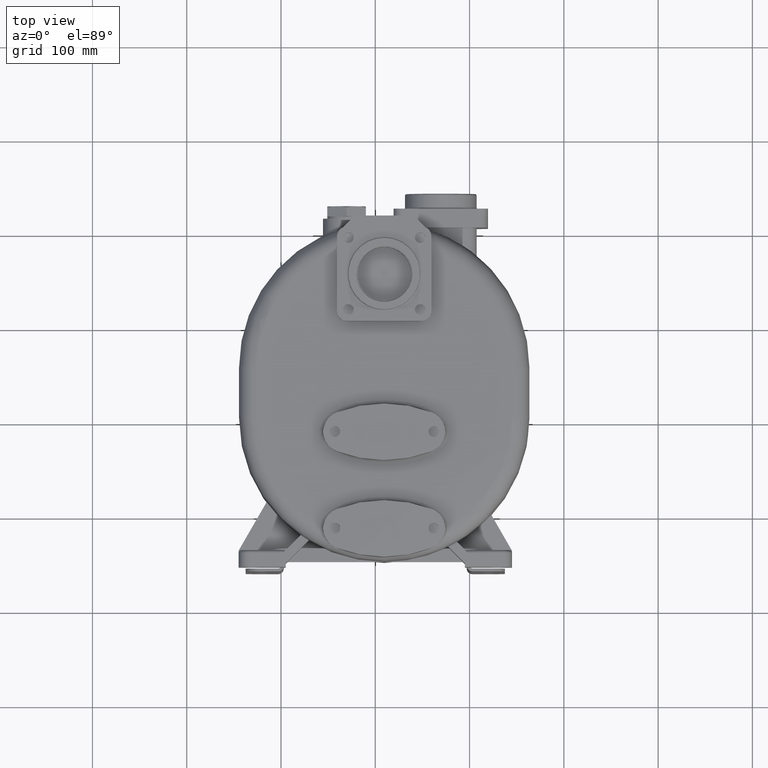
[diagram: clean part render]
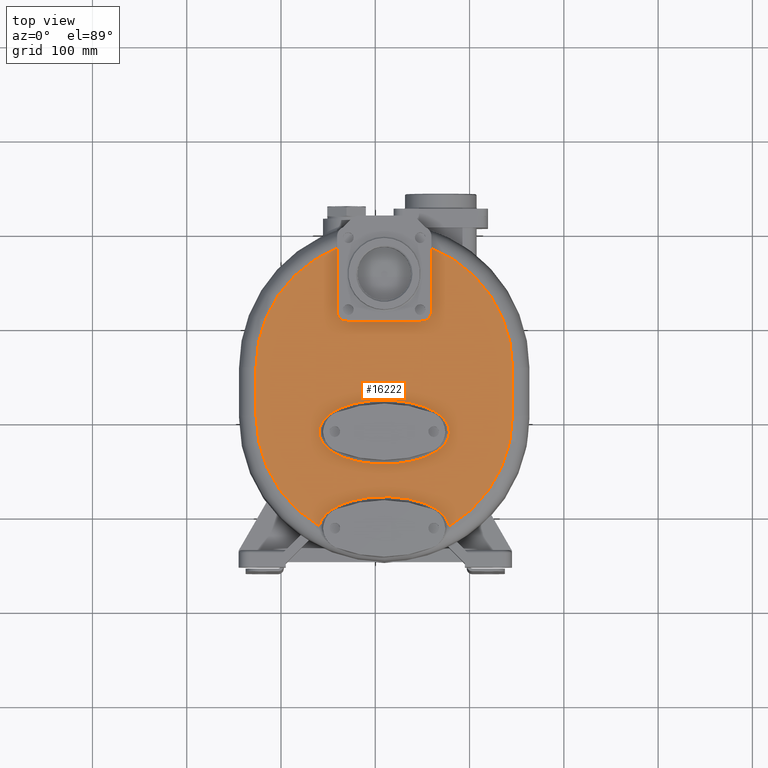
[diagram: same view with one face highlighted and labeled with its STEP entity id]
A machine part, top view. The second image highlights one B-rep face of the part: STEP entity #16222.
In plain terms, the highlighted planar face has unit normal (0, 0, -1).
Its self-contained STEP definition (entity closure, byte-faithful):
#1593=DIRECTION('',(0.E0,1.E0,0.E0));
#1594=VECTOR('',#1593,6.565424301820E1);
#1595=CARTESIAN_POINT('',(5.95E1,1.12E2,2.535E2));
#1596=LINE('',#1595,#1594);
#1602=CARTESIAN_POINT('',(4.75E1,1.12E2,2.535E2));
#1603=DIRECTION('',(0.E0,0.E0,1.E0));
#1604=DIRECTION('',(-1.184237892934E-14,-1.E0,0.E0));
#1605=AXIS2_PLACEMENT_3D('',#1602,#1603,#1604);
#1631=DIRECTION('',(1.E0,0.E0,0.E0));
#1632=VECTOR('',#1631,7.6E1);
#1633=CARTESIAN_POINT('',(-2.85E1,1.E2,2.535E2));
#1634=LINE('',#1633,#1632);
#1644=CARTESIAN_POINT('',(-2.85E1,1.12E2,2.535E2));
#1645=DIRECTION('',(0.E0,0.E0,1.E0));
#1646=DIRECTION('',(-1.E0,0.E0,0.E0));
#1647=AXIS2_PLACEMENT_3D('',#1644,#1645,#1646);
#1673=DIRECTION('',(0.E0,-1.E0,0.E0));
#1674=VECTOR('',#1673,6.565424301820E1);
#1675=CARTESIAN_POINT('',(-4.05E1,1.776542430182E2,2.535E2));
#1676=LINE('',#1675,#1674);
#1773=CARTESIAN_POINT('',(7.829761792100E1,-1.173153176956E2,2.535E2));
#1774=CARTESIAN_POINT('',(7.827001133720E1,-1.171322088930E2,2.534999685827E2));
#1775=CARTESIAN_POINT('',(7.820788121388E1,-1.167646895294E2,2.535000145808E2));
#1776=CARTESIAN_POINT('',(7.809844962269E1,-1.162086899597E2,2.534999960931E2));
#1777=CARTESIAN_POINT('',(7.796960011689E1,-1.156488451608E2,2.535000010469E2));
#1778=CARTESIAN_POINT('',(7.782146177802E1,-1.150853954415E2,2.534999997195E2));
#1779=CARTESIAN_POINT('',(7.765355959982E1,-1.145186130118E2,2.535000000752E2));
#1780=CARTESIAN_POINT('',(7.746560315051E1,-1.139488108744E2,2.534999999799E2));
#1781=CARTESIAN_POINT('',(7.725724319179E1,-1.133763259978E2,2.535000000054E2));
#1782=CARTESIAN_POINT('',(7.702819298947E1,-1.128016547511E2,2.534999999986E2));
#1783=CARTESIAN_POINT('',(7.677797316453E1,-1.122248693562E2,2.535000000004E2));
#1784=CARTESIAN_POINT('',(7.650577434111E1,-1.116455323902E2,2.534999999999E2));
#1785=CARTESIAN_POINT('',(7.621075199494E1,-1.110634556713E2,2.535E2));
#1786=CARTESIAN_POINT('',(7.589201696621E1,-1.104782238205E2,2.535E2));
#1787=CARTESIAN_POINT('',(7.554844156507E1,-1.098892137214E2,2.535E2));
#1788=CARTESIAN_POINT('',(7.517884479601E1,-1.092959565027E2,2.535E2));
#1789=CARTESIAN_POINT('',(7.478201688097E1,-1.086981514989E2,2.535E2));
#1790=CARTESIAN_POINT('',(7.435696759241E1,-1.080959716267E2,2.535E2));
#1791=CARTESIAN_POINT('',(7.390273736900E1,-1.074897129298E2,2.535E2));
#1792=CARTESIAN_POINT('',(7.341799098349E1,-1.068793025537E2,2.535E2));
#1793=CARTESIAN_POINT('',(7.290127035984E1,-1.062646004869E2,2.535E2));
#1794=CARTESIAN_POINT('',(7.235108022767E1,-1.056455254487E2,2.535E2));
#1795=CARTESIAN_POINT('',(7.176569347326E1,-1.050218024373E2,2.535E2));
#1796=CARTESIAN_POINT('',(7.114322379909E1,-1.043933460992E2,2.535E2));
#1797=CARTESIAN_POINT('',(7.048179830009E1,-1.037602328713E2,2.535E2));
#1798=CARTESIAN_POINT('',(6.977950721064E1,-1.031225159159E2,2.535E2));
#1799=CARTESIAN_POINT('',(6.903426698774E1,-1.024802452489E2,2.535E2));
#1800=CARTESIAN_POINT('',(6.824387652066E1,-1.018337159330E2,2.535E2));
#1801=CARTESIAN_POINT('',(6.740617797724E1,-1.011832262746E2,2.535E2));
#1802=CARTESIAN_POINT('',(6.651881847616E1,-1.005289898531E2,2.535E2));
#1803=CARTESIAN_POINT('',(6.557930263385E1,-9.987154126827E1,2.535E2));
#1804=CARTESIAN_POINT('',(6.458523859239E1,-9.921141500848E1,2.535E2));
#1805=CARTESIAN_POINT('',(6.353412544006E1,-9.854919481406E1,2.535E2));
#1806=CARTESIAN_POINT('',(6.242337060305E1,-9.788576695254E1,2.535E2));
#1807=CARTESIAN_POINT('',(6.125058535284E1,-9.722196977801E1,2.535E2));
#1808=CARTESIAN_POINT('',(6.001323355327E1,-9.655893069569E1,2.535E2));
#1809=CARTESIAN_POINT('',(5.870900572804E1,-9.589785175752E1,2.535E2));
#1810=CARTESIAN_POINT('',(5.733565116969E1,-9.524012802498E1,2.535E2));
#1811=CARTESIAN_POINT('',(5.589108315147E1,-9.458731136743E1,2.535E2));
#1812=CARTESIAN_POINT('',(5.437345926506E1,-9.394111477316E1,2.535E2));
#1813=CARTESIAN_POINT('',(5.278113051634E1,-9.330341429066E1,2.535E2));
#1814=CARTESIAN_POINT('',(5.111278831167E1,-9.267623958227E1,2.535E2));
#1815=CARTESIAN_POINT('',(4.936742083012E1,-9.206176470240E1,2.535E2));
#1816=CARTESIAN_POINT('',(4.754445409462E1,-9.146231400523E1,2.535E2));
#1817=CARTESIAN_POINT('',(4.564370187287E1,-9.088032264780E1,2.535E2));
#1818=CARTESIAN_POINT('',(4.366552829846E1,-9.031833939090E1,2.535E2));
#1819=CARTESIAN_POINT('',(4.161071517028E1,-8.977900397567E1,2.535E2));
#1820=CARTESIAN_POINT('',(3.948086362400E1,-8.926500597583E1,2.535E2));
#1821=CARTESIAN_POINT('',(3.727784556786E1,-8.877910620207E1,2.535E2));
#1822=CARTESIAN_POINT('',(3.500474593239E1,-8.832400998576E1,2.535E2));
#1823=CARTESIAN_POINT('',(3.266463818947E1,-8.790247531682E1,2.535E2));
#1824=CARTESIAN_POINT('',(3.026213998402E1,-8.751706417693E1,2.535E2));
#1825=CARTESIAN_POINT('',(2.780168448252E1,-8.717036231403E1,2.535E2));
#1826=CARTESIAN_POINT('',(2.528919373760E1,-8.686464199894E1,2.535E2));
#1827=CARTESIAN_POINT('',(2.273068397904E1,-8.660209195557E1,2.535E2));
#1828=CARTESIAN_POINT('',(2.013290709008E1,-8.638459072176E1,2.535E2));
#1829=CARTESIAN_POINT('',(1.750333834105E1,-8.621366564488E1,2.535E2));
#1830=CARTESIAN_POINT('',(1.484936366279E1,-8.609071467457E1,2.535E2));
#1831=CARTESIAN_POINT('',(1.217912947404E1,-8.601651723960E1,2.535E2));
#1832=CARTESIAN_POINT('',(9.500763443211E0,-8.599170687653E1,2.535E2));
#1833=CARTESIAN_POINT('',(6.822462426778E0,-8.601652196054E1,2.535E2));
#1834=CARTESIAN_POINT('',(4.152453743125E0,-8.609060923939E1,2.535E2));
#1835=CARTESIAN_POINT('',(1.499022919784E0,-8.621355409104E1,2.535E2));
#1836=CARTESIAN_POINT('',(-1.130009796276E0,-8.638438310433E1,2.535E2));
#1837=CARTESIAN_POINT('',(-3.727108570667E0,-8.660174037029E1,2.535E2));
#1838=CARTESIAN_POINT('',(-6.284687279590E0,-8.686416276766E1,2.535E2));
#1839=CARTESIAN_POINT('',(-8.796469099793E0,-8.716966441994E1,2.535E2));
#1840=CARTESIAN_POINT('',(-1.125607393882E1,-8.751615627886E1,2.535E2));
#1841=CARTESIAN_POINT('',(-1.365792917962E1,-8.790133875080E1,2.535E2));
#1842=CARTESIAN_POINT('',(-1.599755665647E1,-8.832264052843E1,2.535E2));
#1843=CARTESIAN_POINT('',(-1.827032903385E1,-8.877752953792E1,2.535E2));
#1844=CARTESIAN_POINT('',(-2.047323421311E1,-8.926324536476E1,2.535E2));
#1845=CARTESIAN_POINT('',(-2.260310860607E1,-8.977708637812E1,2.535E2));
#1846=CARTESIAN_POINT('',(-2.465805253038E1,-9.031630085144E1,2.535E2));
#1847=CARTESIAN_POINT('',(-2.663644880098E1,-9.087817829500E1,2.535E2));
#1848=CARTESIAN_POINT('',(-2.853743830780E1,-9.146009136967E1,2.535E2));
#1849=CARTESIAN_POINT('',(-3.036067908474E1,-9.205946551968E1,2.535E2));
#1850=CARTESIAN_POINT('',(-3.210629348962E1,-9.267388076138E1,2.535E2));
#1851=CARTESIAN_POINT('',(-3.377490843704E1,-9.330099441137E1,2.535E2));
#1852=CARTESIAN_POINT('',(-3.536748543789E1,-9.393865262741E1,2.535E2));
#1853=CARTESIAN_POINT('',(-3.688538783167E1,-9.458480662227E1,2.535E2));
#1854=CARTESIAN_POINT('',(-3.833021606073E1,-9.523760520807E1,2.535E2));
#1855=CARTESIAN_POINT('',(-3.970386444926E1,-9.589531105227E1,2.535E2));
#1856=CARTESIAN_POINT('',(-4.100836592566E1,-9.655640060629E1,2.535E2));
#1857=CARTESIAN_POINT('',(-4.224601951180E1,-9.721944839937E1,2.535E2));
#1858=CARTESIAN_POINT('',(-4.341908891934E1,-9.788328060302E1,2.535E2));
#1859=CARTESIAN_POINT('',(-4.453012713599E1,-9.854674327292E1,2.535E2));
#1860=CARTESIAN_POINT('',(-4.558152244355E1,-9.920900185035E1,2.535E2));
#1861=CARTESIAN_POINT('',(-4.657583400800E1,-9.986918670947E1,2.535E2));
#1862=CARTESIAN_POINT('',(-4.751560162049E1,-1.005266738043E2,2.535E2));
#1863=CARTESIAN_POINT('',(-4.840320008684E1,-1.011809657965E2,2.535E2));
#1864=CARTESIAN_POINT('',(-4.924110078969E1,-1.018315147107E2,2.535E2));
#1865=CARTESIAN_POINT('',(-5.003168490846E1,-1.024780731361E2,2.535E2));
#1866=CARTESIAN_POINT('',(-5.077711795260E1,-1.031203916782E2,2.535E2));
#1867=CARTESIAN_POINT('',(-5.147957765007E1,-1.037581726337E2,2.535E2));
#1868=CARTESIAN_POINT('',(-5.214118902656E1,-1.043913456712E2,2.535E2));
#1869=CARTESIAN_POINT('',(-5.276386898439E1,-1.050198978749E2,2.535E2));
#1870=CARTESIAN_POINT('',(-5.334942701530E1,-1.056437173165E2,2.535E2));
#1871=CARTESIAN_POINT('',(-5.389974994306E1,-1.062628573678E2,2.535E2));
#1872=CARTESIAN_POINT('',(-5.441654795369E1,-1.068775461636E2,2.535E2));
#1873=CARTESIAN_POINT('',(-5.490135635374E1,-1.074879207658E2,2.535E2));
#1874=CARTESIAN_POINT('',(-5.535562789346E1,-1.080941193529E2,2.535E2));
#1875=CARTESIAN_POINT('',(-5.578074758301E1,-1.086962955395E2,2.535E2));
#1876=CARTESIAN_POINT('',(-5.617767973243E1,-1.092941504874E2,2.535E2));
#1877=CARTESIAN_POINT('',(-5.654737232708E1,-1.098874493087E2,2.535E2));
#1878=CARTESIAN_POINT('',(-5.689101338795E1,-1.104764471953E2,2.535E2));
#1879=CARTESIAN_POINT('',(-5.720979213959E1,-1.110616194999E2,2.535E2));
#1880=CARTESIAN_POINT('',(-5.750484201970E1,-1.116435860561E2,
2.534999999999E2));
#1881=CARTESIAN_POINT('',(-5.777707249210E1,-1.122228303411E2,
2.535000000004E2));
#1882=CARTESIAN_POINT('',(-5.802733199407E1,-1.127995900019E2,
2.534999999985E2));
#1883=CARTESIAN_POINT('',(-5.825644958648E1,-1.133743133089E2,
2.535000000056E2));
#1884=CARTESIAN_POINT('',(-5.846492851703E1,-1.139469962902E2,
2.534999999792E2));
#1885=CARTESIAN_POINT('',(-5.865303192293E1,-1.145170880896E2,
2.535000000778E2));
#1886=CARTESIAN_POINT('',(-5.882109461114E1,-1.150842149659E2,
2.534999997096E2));
#1887=CARTESIAN_POINT('',(-5.896939984422E1,-1.156480214799E2,
2.535000010836E2));
#1888=CARTESIAN_POINT('',(-5.909839661563E1,-1.162081929463E2,
2.534999959559E2));
#1889=CARTESIAN_POINT('',(-5.920797165856E1,-1.167644806347E2,
2.535000150928E2));
#1890=CARTESIAN_POINT('',(-5.927000465394E1,-1.171321548051E2,
2.534999674795E2));
#1891=CARTESIAN_POINT('',(-5.929761836222E1,-1.173153192514E2,2.535E2));
#1893=CARTESIAN_POINT('',(9.5E0,0.E0,2.535E2));
#1894=DIRECTION('',(0.E0,0.E0,1.E0));
#1895=DIRECTION('',(-1.E0,0.E0,0.E0));
#1896=AXIS2_PLACEMENT_3D('',#1893,#1894,#1895);
#1898=DIRECTION('',(0.E0,-1.E0,0.E0));
#1899=VECTOR('',#1898,5.117894898810E1);
#1900=CARTESIAN_POINT('',(-1.265E2,5.117894898810E1,2.535E2));
#1901=LINE('',#1900,#1899);
#1902=CARTESIAN_POINT('',(9.5E0,5.117894898810E1,2.535E2));
#1903=DIRECTION('',(0.E0,0.E0,1.E0));
#1904=DIRECTION('',(-3.676470588235E-1,9.299653972801E-1,0.E0));
#1905=AXIS2_PLACEMENT_3D('',#1902,#1903,#1904);
#1907=CARTESIAN_POINT('',(9.5E0,5.117894898810E1,2.535E2));
#1908=DIRECTION('',(0.E0,0.E0,1.E0));
#1909=DIRECTION('',(1.E0,0.E0,0.E0));
#1910=AXIS2_PLACEMENT_3D('',#1907,#1908,#1909);
#1912=DIRECTION('',(0.E0,1.E0,0.E0));
#1913=VECTOR('',#1912,5.117894898810E1);
#1914=CARTESIAN_POINT('',(1.455E2,2.232246826167E-13,2.535E2));
#1915=LINE('',#1914,#1913);
#1916=CARTESIAN_POINT('',(9.5E0,0.E0,2.535E2));
#1917=DIRECTION('',(0.E0,0.E0,1.E0));
#1918=DIRECTION('',(5.058648923868E-1,-8.626127234458E-1,0.E0));
#1919=AXIS2_PLACEMENT_3D('',#1916,#1917,#1918);
#1921=CARTESIAN_POINT('',(-5.95E1,-1.75E1,2.535E2));
#1922=CARTESIAN_POINT('',(-5.949992643924E1,-1.768583549955E1,
2.535000369915E2));
#1923=CARTESIAN_POINT('',(-5.949370592854E1,-1.805752532977E1,
2.534999828322E2));
#1924=CARTESIAN_POINT('',(-5.946735966326E1,-1.861504573761E1,
2.535000046001E2));
#1925=CARTESIAN_POINT('',(-5.942358230477E1,-1.917276619847E1,
2.534999987674E2));
#1926=CARTESIAN_POINT('',(-5.936247118494E1,-1.973081188929E1,
2.535000003303E2));
#1927=CARTESIAN_POINT('',(-5.928386147082E1,-2.028930933935E1,
2.534999999115E2));
#1928=CARTESIAN_POINT('',(-5.918753681725E1,-2.084834602771E1,
2.535000000237E2));
#1929=CARTESIAN_POINT('',(-5.907316635480E1,-2.140798798768E1,
2.534999999936E2));
#1930=CARTESIAN_POINT('',(-5.894034032462E1,-2.196819193702E1,
2.535000000017E2));
#1931=CARTESIAN_POINT('',(-5.878887457450E1,-2.252935670132E1,
2.534999999995E2));
#1932=CARTESIAN_POINT('',(-5.861830066031E1,-2.309243522894E1,
2.535000000001E2));
#1933=CARTESIAN_POINT('',(-5.842804653398E1,-2.365816168509E1,2.535E2));
#1934=CARTESIAN_POINT('',(-5.821735200439E1,-2.422733665590E1,2.535E2));
#1935=CARTESIAN_POINT('',(-5.798561810959E1,-2.479992823021E1,2.535E2));
#1936=CARTESIAN_POINT('',(-5.773242405688E1,-2.537537495349E1,2.535E2));
#1937=CARTESIAN_POINT('',(-5.745731528331E1,-2.595309020398E1,2.535E2));
#1938=CARTESIAN_POINT('',(-5.715987287606E1,-2.653270186609E1,2.535E2));
#1939=CARTESIAN_POINT('',(-5.683886165442E1,-2.711544040065E1,2.535E2));
#1940=CARTESIAN_POINT('',(-5.649293233715E1,-2.770228474372E1,2.535E2));
#1941=CARTESIAN_POINT('',(-5.612066557723E1,-2.829399530855E1,2.535E2));
#1942=CARTESIAN_POINT('',(-5.572125904534E1,-2.889014942717E1,2.535E2));
#1943=CARTESIAN_POINT('',(-5.529400959907E1,-2.949019464904E1,2.535E2));
#1944=CARTESIAN_POINT('',(-5.483790798399E1,-3.009394975671E1,2.535E2));
#1945=CARTESIAN_POINT('',(-5.435112314566E1,-3.070217848574E1,2.535E2));
#1946=CARTESIAN_POINT('',(-5.383191738727E1,-3.131529717225E1,2.535E2));
#1947=CARTESIAN_POINT('',(-5.327882616243E1,-3.193328628442E1,2.535E2));
#1948=CARTESIAN_POINT('',(-5.269041057792E1,-3.255600541957E1,2.535E2));
#1949=CARTESIAN_POINT('',(-5.206473877883E1,-3.318353456754E1,2.535E2));
#1950=CARTESIAN_POINT('',(-5.139989985261E1,-3.381584833335E1,2.535E2));
#1951=CARTESIAN_POINT('',(-5.069415786181E1,-3.445275363085E1,2.535E2));
#1952=CARTESIAN_POINT('',(-4.994546334678E1,-3.509407839467E1,2.535E2));
#1953=CARTESIAN_POINT('',(-4.915141320153E1,-3.573973004827E1,2.535E2));
#1954=CARTESIAN_POINT('',(-4.830982173086E1,-3.638947355932E1,2.535E2));
#1955=CARTESIAN_POINT('',(-4.741840257734E1,-3.704292770529E1,2.535E2));
#1956=CARTESIAN_POINT('',(-4.647467058172E1,-3.769956116970E1,2.535E2));
#1957=CARTESIAN_POINT('',(-4.547641541511E1,-3.835878423251E1,2.535E2));
#1958=CARTESIAN_POINT('',(-4.442118841294E1,-3.901987859138E1,2.535E2));
#1959=CARTESIAN_POINT('',(-4.330640137875E1,-3.968204370664E1,2.535E2));
#1960=CARTESIAN_POINT('',(-4.212969709700E1,-4.034442249203E1,2.535E2));
#1961=CARTESIAN_POINT('',(-4.088860527040E1,-4.100582365324E1,2.535E2));
#1962=CARTESIAN_POINT('',(-3.958089271635E1,-4.166509794987E1,2.535E2));
#1963=CARTESIAN_POINT('',(-3.820432033009E1,-4.232078287350E1,2.535E2));
#1964=CARTESIAN_POINT('',(-3.675680567641E1,-4.297143028169E1,2.535E2));
#1965=CARTESIAN_POINT('',(-3.523651641802E1,-4.361526147837E1,2.535E2));
#1966=CARTESIAN_POINT('',(-3.364181525469E1,-4.425049359451E1,2.535E2));
#1967=CARTESIAN_POINT('',(-3.197145690446E1,-4.487501600819E1,2.535E2));
#1968=CARTESIAN_POINT('',(-3.022442284619E1,-4.548675593686E1,2.535E2));
#1969=CARTESIAN_POINT('',(-2.840024679119E1,-4.608329642122E1,2.535E2));
#1970=CARTESIAN_POINT('',(-2.649869018303E1,-4.666232747864E1,2.535E2));
#1971=CARTESIAN_POINT('',(-2.452028240887E1,-4.722118724761E1,2.535E2));
#1972=CARTESIAN_POINT('',(-2.246576471362E1,-4.775737410404E1,2.535E2));
#1973=CARTESIAN_POINT('',(-2.033685088408E1,-4.826809795829E1,2.535E2));
#1974=CARTESIAN_POINT('',(-1.813550692151E1,-4.875071557645E1,2.535E2));
#1975=CARTESIAN_POINT('',(-1.586469615730E1,-4.920248323968E1,2.535E2));
#1976=CARTESIAN_POINT('',(-1.352781606030E1,-4.962070447068E1,2.535E2));
#1977=CARTESIAN_POINT('',(-1.112903119538E1,-5.000287067926E1,2.535E2));
#1978=CARTESIAN_POINT('',(-8.673326547345E0,-5.034637154381E1,2.535E2));
#1979=CARTESIAN_POINT('',(-6.165966725194E0,-5.064908169266E1,2.535E2));
#1980=CARTESIAN_POINT('',(-3.613423671208E0,-5.090871737215E1,2.535E2));
#1981=CARTESIAN_POINT('',(-1.022078267083E0,-5.112357232876E1,2.535E2));
#1982=CARTESIAN_POINT('',(1.600657244835E0,-5.129202766620E1,2.535E2));
#1983=CARTESIAN_POINT('',(4.247204080420E0,-5.141277471987E1,2.535E2));
#1984=CARTESIAN_POINT('',(6.909772940035E0,-5.148506768444E1,2.535E2));
#1985=CARTESIAN_POINT('',(9.580142626739E0,-5.150820343658E1,2.535E2));
#1986=CARTESIAN_POINT('',(1.225011933597E1,-5.148207359023E1,2.535E2));
#1987=CARTESIAN_POINT('',(1.491156708201E1,-5.140696265736E1,2.535E2));
#1988=CARTESIAN_POINT('',(1.755643288215E1,-5.128327944888E1,2.535E2));
#1989=CARTESIAN_POINT('',(2.017665326749E1,-5.111210636485E1,2.535E2));
#1990=CARTESIAN_POINT('',(2.276492539068E1,-5.089467797809E1,2.535E2));
#1991=CARTESIAN_POINT('',(2.531398911138E1,-5.063248680121E1,2.535E2));
#1992=CARTESIAN_POINT('',(2.781704159325E1,-5.032759761940E1,2.535E2));
#1993=CARTESIAN_POINT('',(3.026838854981E1,-4.998192195080E1,2.535E2));
#1994=CARTESIAN_POINT('',(3.266217687239E1,-4.959789759596E1,2.535E2));
#1995=CARTESIAN_POINT('',(3.499391234053E1,-4.917799847627E1,2.535E2));
#1996=CARTESIAN_POINT('',(3.725937832605E1,-4.872471635698E1,2.535E2));
#1997=CARTESIAN_POINT('',(3.945506579444E1,-4.824090372847E1,2.535E2));
#1998=CARTESIAN_POINT('',(4.157839505343E1,-4.772907125506E1,2.535E2));
#1999=CARTESIAN_POINT('',(4.362702313056E1,-4.719213010478E1,2.535E2));
#2000=CARTESIAN_POINT('',(4.559971437785E1,-4.663259007120E1,2.535E2));
#2001=CARTESIAN_POINT('',(4.749536424136E1,-4.605321143900E1,2.535E2));
#2002=CARTESIAN_POINT('',(4.931381909586E1,-4.545640807746E1,2.535E2));
#2003=CARTESIAN_POINT('',(5.105508158293E1,-4.484469419952E1,2.535E2));
#2004=CARTESIAN_POINT('',(5.271987328294E1,-4.422028247192E1,2.535E2));
#2005=CARTESIAN_POINT('',(5.430908613387E1,-4.358539787051E1,2.535E2));
#2006=CARTESIAN_POINT('',(5.582412697310E1,-4.294197922253E1,2.535E2));
#2007=CARTESIAN_POINT('',(5.726655898213E1,-4.229193434101E1,2.535E2));
#2008=CARTESIAN_POINT('',(5.863827370486E1,-4.163690671919E1,2.535E2));
#2009=CARTESIAN_POINT('',(5.994128820411E1,-4.097847317094E1,2.535E2));
#2010=CARTESIAN_POINT('',(6.117783632529E1,-4.031798988044E1,2.535E2));
#2011=CARTESIAN_POINT('',(6.235021875997E1,-3.965666286736E1,2.535E2));
#2012=CARTESIAN_POINT('',(6.346085979041E1,-3.899563167269E1,2.535E2));
#2013=CARTESIAN_POINT('',(6.451211821843E1,-3.833575337047E1,2.535E2));
#2014=CARTESIAN_POINT('',(6.550655551542E1,-3.767792679538E1,2.535E2));
#2015=CARTESIAN_POINT('',(6.644654308100E1,-3.702277846083E1,2.535E2));
#2016=CARTESIAN_POINT('',(6.733457306955E1,-3.637079958387E1,2.535E2));
#2017=CARTESIAN_POINT('',(6.817311773434E1,-3.572251992743E1,2.535E2));
#2018=CARTESIAN_POINT('',(6.896439032716E1,-3.507824226808E1,2.535E2));
#2019=CARTESIAN_POINT('',(6.971075498020E1,-3.443811273835E1,2.535E2));
#2020=CARTESIAN_POINT('',(7.041440751229E1,-3.380239855332E1,2.535E2));
#2021=CARTESIAN_POINT('',(7.107726479795E1,-3.317126663816E1,2.535E2));
#2022=CARTESIAN_POINT('',(7.170134012533E1,-3.254469404647E1,2.535E2));
#2023=CARTESIAN_POINT('',(7.228852155619E1,-3.192274328589E1,2.535E2));
#2024=CARTESIAN_POINT('',(7.284045581007E1,-3.130546684974E1,2.535E2));
#2025=CARTESIAN_POINT('',(7.335883609343E1,-3.069272577594E1,2.535E2));
#2026=CARTESIAN_POINT('',(7.384522486547E1,-3.008445783421E1,2.535E2));
#2027=CARTESIAN_POINT('',(7.430099621383E1,-2.948063575742E1,2.535E2));
#2028=CARTESIAN_POINT('',(7.472754264112E1,-2.888106152244E1,2.535E2));
#2029=CARTESIAN_POINT('',(7.512612497110E1,-2.828559753318E1,2.535E2));
#2030=CARTESIAN_POINT('',(7.549788650179E1,-2.769414003431E1,2.535E2));
#2031=CARTESIAN_POINT('',(7.584395924231E1,-2.710643663862E1,2.535E2));
#2032=CARTESIAN_POINT('',(7.616531801877E1,-2.652233470148E1,2.535E2));
#2033=CARTESIAN_POINT('',(7.646288707471E1,-2.594169484958E1,2.535E2));
#2034=CARTESIAN_POINT('',(7.673754114141E1,-2.536426096668E1,2.535E2));
#2035=CARTESIAN_POINT('',(7.699006885885E1,-2.478979525003E1,2.535E2));
#2036=CARTESIAN_POINT('',(7.722124767839E1,-2.421799532067E1,2.535E2));
#2037=CARTESIAN_POINT('',(7.743169061506E1,-2.364862215097E1,2.535E2));
#2038=CARTESIAN_POINT('',(7.762191403805E1,-2.308165263114E1,2.535E2));
#2039=CARTESIAN_POINT('',(7.779243753280E1,-2.251704613851E1,2.535E2));
#2040=CARTESIAN_POINT('',(7.794373872304E1,-2.195448722023E1,2.535000000001E2));
#2041=CARTESIAN_POINT('',(7.807630448617E1,-2.139346690889E1,2.534999999997E2));
#2042=CARTESIAN_POINT('',(7.819059689679E1,-2.083342309320E1,2.535000000011E2));
#2043=CARTESIAN_POINT('',(7.828685028349E1,-2.027406772542E1,2.534999999958E2));
#2044=CARTESIAN_POINT('',(7.836514855153E1,-1.971580579823E1,2.535000000156E2));
#2045=CARTESIAN_POINT('',(7.842571945030E1,-1.915893430248E1,2.534999999417E2));
#2046=CARTESIAN_POINT('',(7.846873927869E1,-1.860376030285E1,2.535000002176E2));
#2047=CARTESIAN_POINT('',(7.849433000484E1,-1.805052068892E1,2.534999991879E2));
#2048=CARTESIAN_POINT('',(7.849999698055E1,-1.768326115585E1,2.535000017499E2));
#2049=CARTESIAN_POINT('',(7.85E1,-1.75E1,2.535E2));
#2051=CARTESIAN_POINT('',(7.85E1,-1.75E1,2.535E2));
#2052=CARTESIAN_POINT('',(7.849992643924E1,-1.731416450045E1,2.535000369915E2));
#2053=CARTESIAN_POINT('',(7.849370592854E1,-1.694247467023E1,2.534999828322E2));
#2054=CARTESIAN_POINT('',(7.846735966326E1,-1.638495426239E1,2.535000046001E2));
#2055=CARTESIAN_POINT('',(7.842358230477E1,-1.582723380153E1,2.534999987674E2));
#2056=CARTESIAN_POINT('',(7.836247118494E1,-1.526918811071E1,2.535000003303E2));
#2057=CARTESIAN_POINT('',(7.828386147082E1,-1.471069066065E1,2.534999999115E2));
#2058=CARTESIAN_POINT('',(7.818753681725E1,-1.415165397229E1,2.535000000237E2));
#2059=CARTESIAN_POINT('',(7.807316635480E1,-1.359201201232E1,2.534999999936E2));
#2060=CARTESIAN_POINT('',(7.794034032462E1,-1.303180806298E1,2.535000000017E2));
#2061=CARTESIAN_POINT('',(7.778887457450E1,-1.247064329868E1,2.534999999995E2));
#2062=CARTESIAN_POINT('',(7.761830066032E1,-1.190756477106E1,2.535000000001E2));
#2063=CARTESIAN_POINT('',(7.742804653398E1,-1.134183831491E1,2.535E2));
#2064=CARTESIAN_POINT('',(7.721735200439E1,-1.077266334410E1,2.535E2));
#2065=CARTESIAN_POINT('',(7.698561810959E1,-1.020007176979E1,2.535E2));
#2066=CARTESIAN_POINT('',(7.673242405688E1,-9.624625046507E0,2.535E2));
#2067=CARTESIAN_POINT('',(7.645731528331E1,-9.046909796024E0,2.535E2));
#2068=CARTESIAN_POINT('',(7.615987287606E1,-8.467298133913E0,2.535E2));
#2069=CARTESIAN_POINT('',(7.583886165442E1,-7.884559599355E0,2.535E2));
#2070=CARTESIAN_POINT('',(7.549293233715E1,-7.297715256285E0,2.535E2));
#2071=CARTESIAN_POINT('',(7.512066557723E1,-6.706004691454E0,2.535E2));
#2072=CARTESIAN_POINT('',(7.472125904534E1,-6.109850572827E0,2.535E2));
#2073=CARTESIAN_POINT('',(7.429400959907E1,-5.509805350963E0,2.535E2));
#2074=CARTESIAN_POINT('',(7.383790798399E1,-4.906050243289E0,2.535E2));
#2075=CARTESIAN_POINT('',(7.335112314566E1,-4.297821514257E0,2.535E2));
#2076=CARTESIAN_POINT('',(7.283191738727E1,-3.684702827749E0,2.535E2));
#2077=CARTESIAN_POINT('',(7.227882616243E1,-3.066713715584E0,2.535E2));
#2078=CARTESIAN_POINT('',(7.169041057792E1,-2.443994580426E0,2.535E2));
#2079=CARTESIAN_POINT('',(7.106473877882E1,-1.816465432459E0,2.535E2));
#2080=CARTESIAN_POINT('',(7.039989985261E1,-1.184151666648E0,2.535E2));
#2081=CARTESIAN_POINT('',(6.969415786181E1,-5.472463691543E-1,2.535E2));
#2082=CARTESIAN_POINT('',(6.894546334678E1,9.407839467514E-2,2.535E2));
#2083=CARTESIAN_POINT('',(6.815141320153E1,7.397300482663E-1,2.535E2));
#2084=CARTESIAN_POINT('',(6.730982173086E1,1.389473559321E0,2.535E2));
#2085=CARTESIAN_POINT('',(6.641840257734E1,2.042927705294E0,2.535E2));
#2086=CARTESIAN_POINT('',(6.547467058172E1,2.699561169703E0,2.535E2));
#2087=CARTESIAN_POINT('',(6.447641541511E1,3.358784232507E0,2.535E2));
#2088=CARTESIAN_POINT('',(6.342118841294E1,4.019878591384E0,2.535E2));
#2089=CARTESIAN_POINT('',(6.230640137875E1,4.682043706643E0,2.535E2));
#2090=CARTESIAN_POINT('',(6.112969709700E1,5.344422492029E0,2.535E2));
#2091=CARTESIAN_POINT('',(5.988860527040E1,6.005823653238E0,2.535E2));
#2092=CARTESIAN_POINT('',(5.858089271635E1,6.665097949871E0,2.535E2));
#2093=CARTESIAN_POINT('',(5.720432033009E1,7.320782873501E0,2.535E2));
#2094=CARTESIAN_POINT('',(5.575680567641E1,7.971430281687E0,2.535E2));
#2095=CARTESIAN_POINT('',(5.423651641802E1,8.615261478369E0,2.535E2));
#2096=CARTESIAN_POINT('',(5.264181525469E1,9.250493594511E0,2.535E2));
#2097=CARTESIAN_POINT('',(5.097145690446E1,9.875016008192E0,2.535E2));
#2098=CARTESIAN_POINT('',(4.922442284618E1,1.048675593686E1,2.535E2));
#2099=CARTESIAN_POINT('',(4.740024679119E1,1.108329642122E1,2.535E2));
#2100=CARTESIAN_POINT('',(4.549869018303E1,1.166232747864E1,2.535E2));
#2101=CARTESIAN_POINT('',(4.352028240887E1,1.222118724761E1,2.535E2));
#2102=CARTESIAN_POINT('',(4.146576471362E1,1.275737410404E1,2.535E2));
#2103=CARTESIAN_POINT('',(3.933685088408E1,1.326809795829E1,2.535E2));
#2104=CARTESIAN_POINT('',(3.713550692151E1,1.375071557645E1,2.535E2));
#2105=CARTESIAN_POINT('',(3.486469615730E1,1.420248323968E1,2.535E2));
#2106=CARTESIAN_POINT('',(3.252781606030E1,1.462070447068E1,2.535E2));
#2107=CARTESIAN_POINT('',(3.012903119538E1,1.500287067926E1,2.535E2));
#2108=CARTESIAN_POINT('',(2.767332654735E1,1.534637154381E1,2.535E2));
#2109=CARTESIAN_POINT('',(2.516596672520E1,1.564908169266E1,2.535E2));
#2110=CARTESIAN_POINT('',(2.261342367121E1,1.590871737215E1,2.535E2));
#2111=CARTESIAN_POINT('',(2.002207826708E1,1.612357232876E1,2.535E2));
#2112=CARTESIAN_POINT('',(1.739934275517E1,1.629202766620E1,2.535E2));
#2113=CARTESIAN_POINT('',(1.475279591958E1,1.641277471987E1,2.535E2));
#2114=CARTESIAN_POINT('',(1.209022705997E1,1.648506768444E1,2.535E2));
#2115=CARTESIAN_POINT('',(9.419857373263E0,1.650820343658E1,2.535E2));
#2116=CARTESIAN_POINT('',(6.749880664033E0,1.648207359023E1,2.535E2));
#2117=CARTESIAN_POINT('',(4.088432917994E0,1.640696265736E1,2.535E2));
#2118=CARTESIAN_POINT('',(1.443567117849E0,1.628327944888E1,2.535E2));
#2119=CARTESIAN_POINT('',(-1.176653267484E0,1.611210636485E1,2.535E2));
#2120=CARTESIAN_POINT('',(-3.764925390675E0,1.589467797809E1,2.535E2));
#2121=CARTESIAN_POINT('',(-6.313989111378E0,1.563248680121E1,2.535E2));
#2122=CARTESIAN_POINT('',(-8.817041593251E0,1.532759761940E1,2.535E2));
#2123=CARTESIAN_POINT('',(-1.126838854981E1,1.498192195080E1,2.535E2));
#2124=CARTESIAN_POINT('',(-1.366217687239E1,1.459789759596E1,2.535E2));
#2125=CARTESIAN_POINT('',(-1.599391234053E1,1.417799847627E1,2.535E2));
#2126=CARTESIAN_POINT('',(-1.825937832605E1,1.372471635698E1,2.535E2));
#2127=CARTESIAN_POINT('',(-2.045506579444E1,1.324090372847E1,2.535E2));
#2128=CARTESIAN_POINT('',(-2.257839505343E1,1.272907125506E1,2.535E2));
#2129=CARTESIAN_POINT('',(-2.462702313056E1,1.219213010478E1,2.535E2));
#2130=CARTESIAN_POINT('',(-2.659971437785E1,1.163259007120E1,2.535E2));
#2131=CARTESIAN_POINT('',(-2.849536424136E1,1.105321143901E1,2.535E2));
#2132=CARTESIAN_POINT('',(-3.031381909586E1,1.045640807746E1,2.535E2));
#2133=CARTESIAN_POINT('',(-3.205508158293E1,9.844694199525E0,2.535E2));
#2134=CARTESIAN_POINT('',(-3.371987328294E1,9.220282471916E0,2.535E2));
#2135=CARTESIAN_POINT('',(-3.530908613387E1,8.585397870514E0,2.535E2));
#2136=CARTESIAN_POINT('',(-3.682412697310E1,7.941979222526E0,2.535E2));
#2137=CARTESIAN_POINT('',(-3.826655898212E1,7.291934341011E0,2.535E2));
#2138=CARTESIAN_POINT('',(-3.963827370486E1,6.636906719193E0,2.535E2));
#2139=CARTESIAN_POINT('',(-4.094128820411E1,5.978473170941E0,2.535E2));
#2140=CARTESIAN_POINT('',(-4.217783632529E1,5.317989880442E0,2.535E2));
#2141=CARTESIAN_POINT('',(-4.335021875996E1,4.656662867359E0,2.535E2));
#2142=CARTESIAN_POINT('',(-4.446085979041E1,3.995631672686E0,2.535E2));
#2143=CARTESIAN_POINT('',(-4.551211821842E1,3.335753370470E0,2.535E2));
#2144=CARTESIAN_POINT('',(-4.650655551542E1,2.677926795378E0,2.535E2));
#2145=CARTESIAN_POINT('',(-4.744654308100E1,2.022778460831E0,2.535E2));
#2146=CARTESIAN_POINT('',(-4.833457306955E1,1.370799583867E0,2.535E2));
#2147=CARTESIAN_POINT('',(-4.917311773434E1,7.225199274334E-1,2.535E2));
#2148=CARTESIAN_POINT('',(-4.996439032716E1,7.824226807792E-2,2.535E2));
#2149=CARTESIAN_POINT('',(-5.071075498020E1,-5.618872616519E-1,2.535E2));
#2150=CARTESIAN_POINT('',(-5.141440751229E1,-1.197601446678E0,2.535E2));
#2151=CARTESIAN_POINT('',(-5.207726479795E1,-1.828733361841E0,2.535E2));
#2152=CARTESIAN_POINT('',(-5.270134012533E1,-2.455305953529E0,2.535E2));
#2153=CARTESIAN_POINT('',(-5.328852155619E1,-3.077256714111E0,2.535E2));
#2154=CARTESIAN_POINT('',(-5.384045581007E1,-3.694533150263E0,2.535E2));
#2155=CARTESIAN_POINT('',(-5.435883609343E1,-4.307274224058E0,2.535E2));
#2156=CARTESIAN_POINT('',(-5.484522486547E1,-4.915542165791E0,2.535E2));
#2157=CARTESIAN_POINT('',(-5.530099621383E1,-5.519364242575E0,2.535E2));
#2158=CARTESIAN_POINT('',(-5.572754264112E1,-6.118938477554E0,2.535E2));
#2159=CARTESIAN_POINT('',(-5.612612497110E1,-6.714402466816E0,2.535E2));
#2160=CARTESIAN_POINT('',(-5.649788650179E1,-7.305859965693E0,2.535E2));
#2161=CARTESIAN_POINT('',(-5.684395924231E1,-7.893563361379E0,2.535E2));
#2162=CARTESIAN_POINT('',(-5.716531801877E1,-8.477665298523E0,2.535E2));
#2163=CARTESIAN_POINT('',(-5.746288707471E1,-9.058305150423E0,2.535E2));
#2164=CARTESIAN_POINT('',(-5.773754114140E1,-9.635739033319E0,2.535E2));
#2165=CARTESIAN_POINT('',(-5.799006885885E1,-1.021020474997E1,2.535E2));
#2166=CARTESIAN_POINT('',(-5.822124767839E1,-1.078200467932E1,2.535E2));
#2167=CARTESIAN_POINT('',(-5.843169061506E1,-1.135137784903E1,2.535E2));
#2168=CARTESIAN_POINT('',(-5.862191403805E1,-1.191834736886E1,2.535E2));
#2169=CARTESIAN_POINT('',(-5.879243753280E1,-1.248295386149E1,2.535E2));
#2170=CARTESIAN_POINT('',(-5.894373872304E1,-1.304551277977E1,
2.535000000001E2));
#2171=CARTESIAN_POINT('',(-5.907630448617E1,-1.360653309111E1,
2.534999999997E2));
#2172=CARTESIAN_POINT('',(-5.919059689679E1,-1.416657690680E1,
2.535000000011E2));
#2173=CARTESIAN_POINT('',(-5.928685028349E1,-1.472593227458E1,
2.534999999958E2));
#2174=CARTESIAN_POINT('',(-5.936514855153E1,-1.528419420177E1,
2.535000000156E2));
#2175=CARTESIAN_POINT('',(-5.942571945030E1,-1.584106569752E1,
2.534999999417E2));
#2176=CARTESIAN_POINT('',(-5.946873927869E1,-1.639623969715E1,
2.535000002176E2));
#2177=CARTESIAN_POINT('',(-5.949433000484E1,-1.694947931108E1,
2.534999991879E2));
#2178=CARTESIAN_POINT('',(-5.949999698055E1,-1.731673884415E1,
2.535000017499E2));
#2179=CARTESIAN_POINT('',(-5.95E1,-1.75E1,2.535E2));
#2258=CARTESIAN_POINT('',(-5.929762195240E1,-1.173153323897E2,2.535E2));
#2401=CARTESIAN_POINT('',(7.829762195240E1,-1.173153323897E2,2.535E2));
#13570=CARTESIAN_POINT('',(-2.85E1,1.E2,2.535E2));
#13571=CARTESIAN_POINT('',(4.75E1,1.E2,2.535E2));
#13572=VERTEX_POINT('',#13570);
#13573=VERTEX_POINT('',#13571);
#13578=CARTESIAN_POINT('',(1.455E2,5.117894898810E1,2.535E2));
#13579=CARTESIAN_POINT('',(5.95E1,1.776542430182E2,2.535E2));
#13580=VERTEX_POINT('',#13578);
#13581=VERTEX_POINT('',#13579);
#13582=CARTESIAN_POINT('',(1.455E2,2.232246826167E-13,2.535E2));
#13583=VERTEX_POINT('',#13582);
#13588=CARTESIAN_POINT('',(-1.265E2,5.117894898810E1,2.535E2));
#13589=CARTESIAN_POINT('',(-1.265E2,0.E0,2.535E2));
#13590=VERTEX_POINT('',#13588);
#13591=VERTEX_POINT('',#13589);
#13594=CARTESIAN_POINT('',(-4.05E1,1.776542430182E2,2.535E2));
#13595=VERTEX_POINT('',#13594);
#13598=CARTESIAN_POINT('',(-4.05E1,1.12E2,2.535E2));
#13599=VERTEX_POINT('',#13598);
#13600=CARTESIAN_POINT('',(5.95E1,1.12E2,2.535E2));
#13601=VERTEX_POINT('',#13600);
#13750=VERTEX_POINT('',#1921);
#13751=VERTEX_POINT('',#2049);
#13758=VERTEX_POINT('',#2258);
#13764=VERTEX_POINT('',#2401);
#16191=CARTESIAN_POINT('',(0.E0,0.E0,2.535E2));
#16192=DIRECTION('',(0.E0,0.E0,-1.E0));
#16193=DIRECTION('',(-1.E0,0.E0,0.E0));
#16194=AXIS2_PLACEMENT_3D('',#16191,#16192,#16193);
#16195=PLANE('',#16194);
#16197=ORIENTED_EDGE('',*,*,#16196,.T.);
#16199=ORIENTED_EDGE('',*,*,#16198,.F.);
#16201=ORIENTED_EDGE('',*,*,#16200,.F.);
#16202=ORIENTED_EDGE('',*,*,#16181,.F.);
#16203=ORIENTED_EDGE('',*,*,#16149,.T.);
#16204=ORIENTED_EDGE('',*,*,#16111,.T.);
#16205=ORIENTED_EDGE('',*,*,#16098,.T.);
#16206=ORIENTED_EDGE('',*,*,#16060,.T.);
#16207=ORIENTED_EDGE('',*,*,#16047,.T.);
#16209=ORIENTED_EDGE('',*,*,#16208,.F.);
#16211=ORIENTED_EDGE('',*,*,#16210,.F.);
#16213=ORIENTED_EDGE('',*,*,#16212,.F.);
#16214=EDGE_LOOP('',(#16197,#16199,#16201,#16202,#16203,#16204,#16205,#16206,
#16207,#16209,#16211,#16213));
#16215=FACE_OUTER_BOUND('',#16214,.F.);
#16217=ORIENTED_EDGE('',*,*,#16216,.T.);
#16219=ORIENTED_EDGE('',*,*,#16218,.T.);
#16220=EDGE_LOOP('',(#16217,#16219));
#16221=FACE_BOUND('',#16220,.F.);
#16222=ADVANCED_FACE('',(#16215,#16221),#16195,.F.);
#1606=CIRCLE('',#1605,1.2E1);
#1648=CIRCLE('',#1647,1.2E1);
#1892=B_SPLINE_CURVE_WITH_KNOTS('',3,(#1773,#1774,#1775,#1776,#1777,#1778,#1779,
#1780,#1781,#1782,#1783,#1784,#1785,#1786,#1787,#1788,#1789,#1790,#1791,#1792,
#1793,#1794,#1795,#1796,#1797,#1798,#1799,#1800,#1801,#1802,#1803,#1804,#1805,
#1806,#1807,#1808,#1809,#1810,#1811,#1812,#1813,#1814,#1815,#1816,#1817,#1818,
#1819,#1820,#1821,#1822,#1823,#1824,#1825,#1826,#1827,#1828,#1829,#1830,#1831,
#1832,#1833,#1834,#1835,#1836,#1837,#1838,#1839,#1840,#1841,#1842,#1843,#1844,
#1845,#1846,#1847,#1848,#1849,#1850,#1851,#1852,#1853,#1854,#1855,#1856,#1857,
#1858,#1859,#1860,#1861,#1862,#1863,#1864,#1865,#1866,#1867,#1868,#1869,#1870,
#1871,#1872,#1873,#1874,#1875,#1876,#1877,#1878,#1879,#1880,#1881,#1882,#1883,
#1884,#1885,#1886,#1887,#1888,#1889,#1890,#1891),.UNSPECIFIED.,.F.,.F.,(4,1,1,1,
1,1,1,1,1,1,1,1,1,1,1,1,1,1,1,1,1,1,1,1,1,1,1,1,1,1,1,1,1,1,1,1,1,1,1,1,1,1,1,1,
1,1,1,1,1,1,1,1,1,1,1,1,1,1,1,1,1,1,1,1,1,1,1,1,1,1,1,1,1,1,1,1,1,1,1,1,1,1,1,1,
1,1,1,1,1,1,1,1,1,1,1,1,1,1,1,1,1,1,1,1,1,1,1,1,1,1,1,1,1,1,1,1,4),(0.E0,
8.620689655172E-3,1.724137931034E-2,2.586206896552E-2,3.448275862069E-2,
4.310344827586E-2,5.172413793103E-2,6.034482758621E-2,6.896551724138E-2,
7.758620689655E-2,8.620689655172E-2,9.482758620690E-2,1.034482758621E-1,
1.120689655172E-1,1.206896551724E-1,1.293103448276E-1,1.379310344828E-1,
1.465517241379E-1,1.551724137931E-1,1.637931034483E-1,1.724137931034E-1,
1.810344827586E-1,1.896551724138E-1,1.982758620690E-1,2.068965517241E-1,
2.155172413793E-1,2.241379310345E-1,2.327586206897E-1,2.413793103448E-1,2.5E-1,
2.586206896552E-1,2.672413793103E-1,2.758620689655E-1,2.844827586207E-1,
2.931034482759E-1,3.017241379310E-1,3.103448275862E-1,3.189655172414E-1,
3.275862068966E-1,3.362068965517E-1,3.448275862069E-1,3.534482758621E-1,
3.620689655172E-1,3.706896551724E-1,3.793103448276E-1,3.879310344828E-1,
3.965517241379E-1,4.051724137931E-1,4.137931034483E-1,4.224137931034E-1,
4.310344827586E-1,4.396551724138E-1,4.482758620690E-1,4.568965517241E-1,
4.655172413793E-1,4.741379310345E-1,4.827586206897E-1,4.913793103448E-1,5.E-1,
5.086206896552E-1,5.172413793103E-1,5.258620689655E-1,5.344827586207E-1,
5.431034482759E-1,5.517241379310E-1,5.603448275862E-1,5.689655172414E-1,
5.775862068966E-1,5.862068965517E-1,5.948275862069E-1,6.034482758621E-1,
6.120689655172E-1,6.206896551724E-1,6.293103448276E-1,6.379310344828E-1,
6.465517241379E-1,6.551724137931E-1,6.637931034483E-1,6.724137931034E-1,
6.810344827586E-1,6.896551724138E-1,6.982758620690E-1,7.068965517241E-1,
7.155172413793E-1,7.241379310345E-1,7.327586206897E-1,7.413793103448E-1,7.5E-1,
7.586206896552E-1,7.672413793103E-1,7.758620689655E-1,7.844827586207E-1,
7.931034482759E-1,8.017241379310E-1,8.103448275862E-1,8.189655172414E-1,
8.275862068966E-1,8.362068965517E-1,8.448275862069E-1,8.534482758621E-1,
8.620689655172E-1,8.706896551724E-1,8.793103448276E-1,8.879310344828E-1,
8.965517241379E-1,9.051724137931E-1,9.137931034483E-1,9.224137931034E-1,
9.310344827586E-1,9.396551724138E-1,9.482758620690E-1,9.568965517241E-1,
9.655172413793E-1,9.741379310345E-1,9.827586206897E-1,9.913793103448E-1,1.E0),
.UNSPECIFIED.);
#1897=CIRCLE('',#1896,1.36E2);
#1906=CIRCLE('',#1905,1.36E2);
#1911=CIRCLE('',#1910,1.36E2);
#1920=CIRCLE('',#1919,1.36E2);
#2050=B_SPLINE_CURVE_WITH_KNOTS('',3,(#1921,#1922,#1923,#1924,#1925,#1926,#1927,
#1928,#1929,#1930,#1931,#1932,#1933,#1934,#1935,#1936,#1937,#1938,#1939,#1940,
#1941,#1942,#1943,#1944,#1945,#1946,#1947,#1948,#1949,#1950,#1951,#1952,#1953,
#1954,#1955,#1956,#1957,#1958,#1959,#1960,#1961,#1962,#1963,#1964,#1965,#1966,
#1967,#1968,#1969,#1970,#1971,#1972,#1973,#1974,#1975,#1976,#1977,#1978,#1979,
#1980,#1981,#1982,#1983,#1984,#1985,#1986,#1987,#1988,#1989,#1990,#1991,#1992,
#1993,#1994,#1995,#1996,#1997,#1998,#1999,#2000,#2001,#2002,#2003,#2004,#2005,
#2006,#2007,#2008,#2009,#2010,#2011,#2012,#2013,#2014,#2015,#2016,#2017,#2018,
#2019,#2020,#2021,#2022,#2023,#2024,#2025,#2026,#2027,#2028,#2029,#2030,#2031,
#2032,#2033,#2034,#2035,#2036,#2037,#2038,#2039,#2040,#2041,#2042,#2043,#2044,
#2045,#2046,#2047,#2048,#2049),.UNSPECIFIED.,.F.,.F.,(4,1,1,1,1,1,1,1,1,1,1,1,1,
1,1,1,1,1,1,1,1,1,1,1,1,1,1,1,1,1,1,1,1,1,1,1,1,1,1,1,1,1,1,1,1,1,1,1,1,1,1,1,1,
1,1,1,1,1,1,1,1,1,1,1,1,1,1,1,1,1,1,1,1,1,1,1,1,1,1,1,1,1,1,1,1,1,1,1,1,1,1,1,1,
1,1,1,1,1,1,1,1,1,1,1,1,1,1,1,1,1,1,1,1,1,1,1,1,1,1,1,1,1,1,1,1,1,4),(0.E0,
7.936507936508E-3,1.587301587302E-2,2.380952380952E-2,3.174603174603E-2,
3.968253968254E-2,4.761904761905E-2,5.555555555556E-2,6.349206349206E-2,
7.142857142857E-2,7.936507936508E-2,8.730158730159E-2,9.523809523810E-2,
1.031746031746E-1,1.111111111111E-1,1.190476190476E-1,1.269841269841E-1,
1.349206349206E-1,1.428571428571E-1,1.507936507937E-1,1.587301587302E-1,
1.666666666667E-1,1.746031746032E-1,1.825396825397E-1,1.904761904762E-1,
1.984126984127E-1,2.063492063492E-1,2.142857142857E-1,2.222222222222E-1,
2.301587301587E-1,2.380952380952E-1,2.460317460317E-1,2.539682539683E-1,
2.619047619048E-1,2.698412698413E-1,2.777777777778E-1,2.857142857143E-1,
2.936507936508E-1,3.015873015873E-1,3.095238095238E-1,3.174603174603E-1,
3.253968253968E-1,3.333333333333E-1,3.412698412698E-1,3.492063492063E-1,
3.571428571429E-1,3.650793650794E-1,3.730158730159E-1,3.809523809524E-1,
3.888888888889E-1,3.968253968254E-1,4.047619047619E-1,4.126984126984E-1,
4.206349206349E-1,4.285714285714E-1,4.365079365079E-1,4.444444444444E-1,
4.523809523810E-1,4.603174603175E-1,4.682539682540E-1,4.761904761905E-1,
4.841269841270E-1,4.920634920635E-1,5.E-1,5.079365079365E-1,5.158730158730E-1,
5.238095238095E-1,5.317460317460E-1,5.396825396825E-1,5.476190476190E-1,
5.555555555556E-1,5.634920634921E-1,5.714285714286E-1,5.793650793651E-1,
5.873015873016E-1,5.952380952381E-1,6.031746031746E-1,6.111111111111E-1,
6.190476190476E-1,6.269841269841E-1,6.349206349206E-1,6.428571428571E-1,
6.507936507937E-1,6.587301587302E-1,6.666666666667E-1,6.746031746032E-1,
6.825396825397E-1,6.904761904762E-1,6.984126984127E-1,7.063492063492E-1,
7.142857142857E-1,7.222222222222E-1,7.301587301587E-1,7.380952380952E-1,
7.460317460317E-1,7.539682539683E-1,7.619047619048E-1,7.698412698413E-1,
7.777777777778E-1,7.857142857143E-1,7.936507936508E-1,8.015873015873E-1,
8.095238095238E-1,8.174603174603E-1,8.253968253968E-1,8.333333333333E-1,
8.412698412698E-1,8.492063492063E-1,8.571428571429E-1,8.650793650794E-1,
8.730158730159E-1,8.809523809524E-1,8.888888888889E-1,8.968253968254E-1,
9.047619047619E-1,9.126984126984E-1,9.206349206349E-1,9.285714285714E-1,
9.365079365079E-1,9.444444444444E-1,9.523809523810E-1,9.603174603175E-1,
9.682539682540E-1,9.761904761905E-1,9.841269841270E-1,9.920634920635E-1,1.E0),
.UNSPECIFIED.);
#2180=B_SPLINE_CURVE_WITH_KNOTS('',3,(#2051,#2052,#2053,#2054,#2055,#2056,#2057,
#2058,#2059,#2060,#2061,#2062,#2063,#2064,#2065,#2066,#2067,#2068,#2069,#2070,
#2071,#2072,#2073,#2074,#2075,#2076,#2077,#2078,#2079,#2080,#2081,#2082,#2083,
#2084,#2085,#2086,#2087,#2088,#2089,#2090,#2091,#2092,#2093,#2094,#2095,#2096,
#2097,#2098,#2099,#2100,#2101,#2102,#2103,#2104,#2105,#2106,#2107,#2108,#2109,
#2110,#2111,#2112,#2113,#2114,#2115,#2116,#2117,#2118,#2119,#2120,#2121,#2122,
#2123,#2124,#2125,#2126,#2127,#2128,#2129,#2130,#2131,#2132,#2133,#2134,#2135,
#2136,#2137,#2138,#2139,#2140,#2141,#2142,#2143,#2144,#2145,#2146,#2147,#2148,
#2149,#2150,#2151,#2152,#2153,#2154,#2155,#2156,#2157,#2158,#2159,#2160,#2161,
#2162,#2163,#2164,#2165,#2166,#2167,#2168,#2169,#2170,#2171,#2172,#2173,#2174,
#2175,#2176,#2177,#2178,#2179),.UNSPECIFIED.,.F.,.F.,(4,1,1,1,1,1,1,1,1,1,1,1,1,
1,1,1,1,1,1,1,1,1,1,1,1,1,1,1,1,1,1,1,1,1,1,1,1,1,1,1,1,1,1,1,1,1,1,1,1,1,1,1,1,
1,1,1,1,1,1,1,1,1,1,1,1,1,1,1,1,1,1,1,1,1,1,1,1,1,1,1,1,1,1,1,1,1,1,1,1,1,1,1,1,
1,1,1,1,1,1,1,1,1,1,1,1,1,1,1,1,1,1,1,1,1,1,1,1,1,1,1,1,1,1,1,1,1,4),(0.E0,
7.936507936508E-3,1.587301587302E-2,2.380952380952E-2,3.174603174603E-2,
3.968253968254E-2,4.761904761905E-2,5.555555555556E-2,6.349206349206E-2,
7.142857142857E-2,7.936507936508E-2,8.730158730159E-2,9.523809523810E-2,
1.031746031746E-1,1.111111111111E-1,1.190476190476E-1,1.269841269841E-1,
1.349206349206E-1,1.428571428571E-1,1.507936507937E-1,1.587301587302E-1,
1.666666666667E-1,1.746031746032E-1,1.825396825397E-1,1.904761904762E-1,
1.984126984127E-1,2.063492063492E-1,2.142857142857E-1,2.222222222222E-1,
2.301587301587E-1,2.380952380952E-1,2.460317460317E-1,2.539682539683E-1,
2.619047619048E-1,2.698412698413E-1,2.777777777778E-1,2.857142857143E-1,
2.936507936508E-1,3.015873015873E-1,3.095238095238E-1,3.174603174603E-1,
3.253968253968E-1,3.333333333333E-1,3.412698412698E-1,3.492063492063E-1,
3.571428571429E-1,3.650793650794E-1,3.730158730159E-1,3.809523809524E-1,
3.888888888889E-1,3.968253968254E-1,4.047619047619E-1,4.126984126984E-1,
4.206349206349E-1,4.285714285714E-1,4.365079365079E-1,4.444444444444E-1,
4.523809523810E-1,4.603174603175E-1,4.682539682540E-1,4.761904761905E-1,
4.841269841270E-1,4.920634920635E-1,5.E-1,5.079365079365E-1,5.158730158730E-1,
5.238095238095E-1,5.317460317460E-1,5.396825396825E-1,5.476190476190E-1,
5.555555555556E-1,5.634920634921E-1,5.714285714286E-1,5.793650793651E-1,
5.873015873016E-1,5.952380952381E-1,6.031746031746E-1,6.111111111111E-1,
6.190476190476E-1,6.269841269841E-1,6.349206349206E-1,6.428571428571E-1,
6.507936507937E-1,6.587301587302E-1,6.666666666667E-1,6.746031746032E-1,
6.825396825397E-1,6.904761904762E-1,6.984126984127E-1,7.063492063492E-1,
7.142857142857E-1,7.222222222222E-1,7.301587301587E-1,7.380952380952E-1,
7.460317460317E-1,7.539682539683E-1,7.619047619048E-1,7.698412698413E-1,
7.777777777778E-1,7.857142857143E-1,7.936507936508E-1,8.015873015873E-1,
8.095238095238E-1,8.174603174603E-1,8.253968253968E-1,8.333333333333E-1,
8.412698412698E-1,8.492063492063E-1,8.571428571429E-1,8.650793650794E-1,
8.730158730159E-1,8.809523809524E-1,8.888888888889E-1,8.968253968254E-1,
9.047619047619E-1,9.126984126984E-1,9.206349206349E-1,9.285714285714E-1,
9.365079365079E-1,9.444444444444E-1,9.523809523810E-1,9.603174603175E-1,
9.682539682540E-1,9.761904761905E-1,9.841269841270E-1,9.920634920635E-1,1.E0),
.UNSPECIFIED.);
#16047=EDGE_CURVE('',#13601,#13581,#1596,.T.);
#16060=EDGE_CURVE('',#13573,#13601,#1606,.T.);
#16098=EDGE_CURVE('',#13572,#13573,#1634,.T.);
#16111=EDGE_CURVE('',#13599,#13572,#1648,.T.);
#16149=EDGE_CURVE('',#13595,#13599,#1676,.T.);
#16181=EDGE_CURVE('',#13595,#13590,#1906,.T.);
#16196=EDGE_CURVE('',#13764,#13758,#1892,.T.);
#16198=EDGE_CURVE('',#13591,#13758,#1897,.T.);
#16200=EDGE_CURVE('',#13590,#13591,#1901,.T.);
#16208=EDGE_CURVE('',#13580,#13581,#1911,.T.);
#16210=EDGE_CURVE('',#13583,#13580,#1915,.T.);
#16212=EDGE_CURVE('',#13764,#13583,#1920,.T.);
#16216=EDGE_CURVE('',#13750,#13751,#2050,.T.);
#16218=EDGE_CURVE('',#13751,#13750,#2180,.T.);